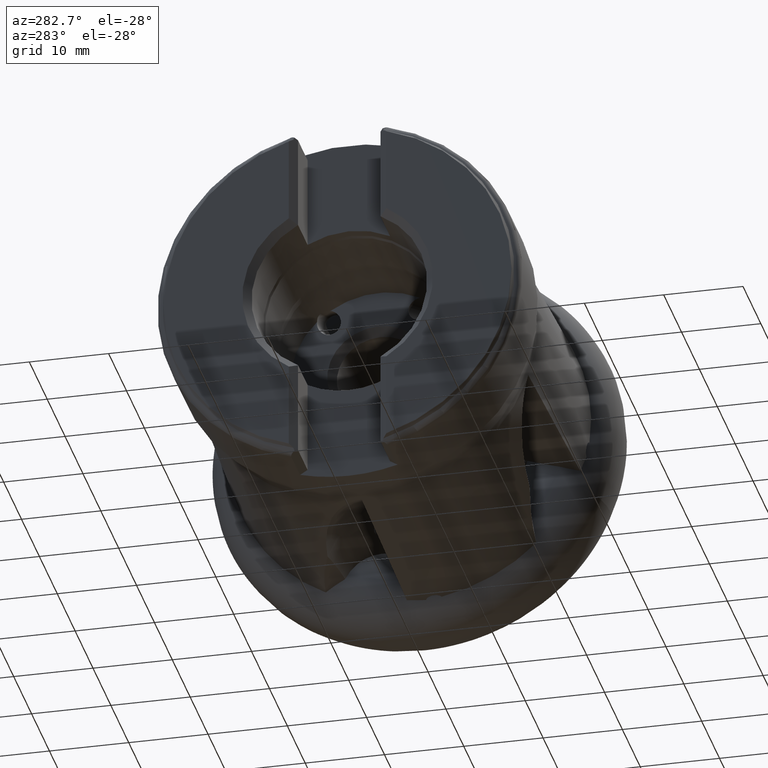
[diagram: clean part render]
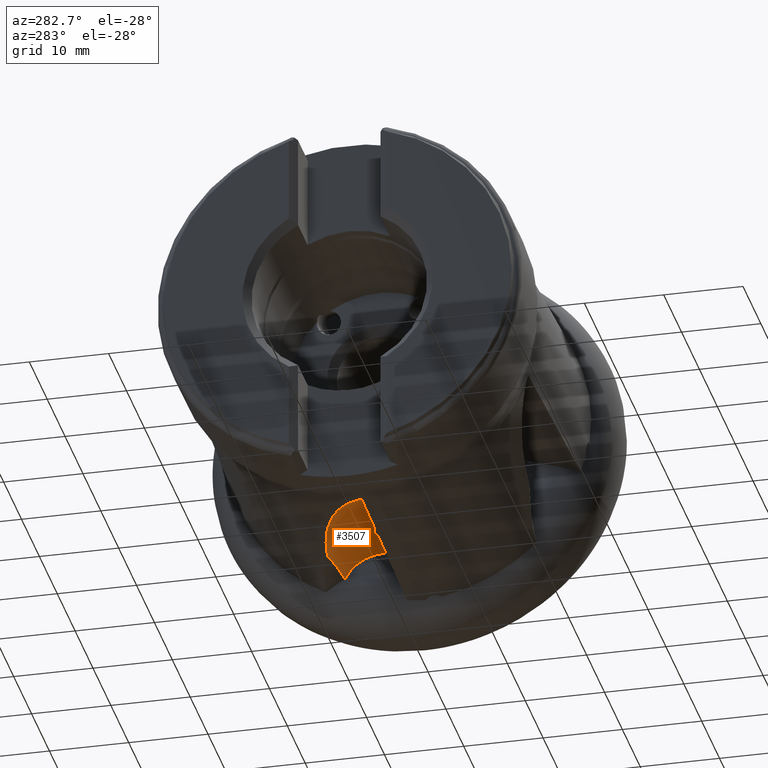
[diagram: same view with one face highlighted and labeled with its STEP entity id]
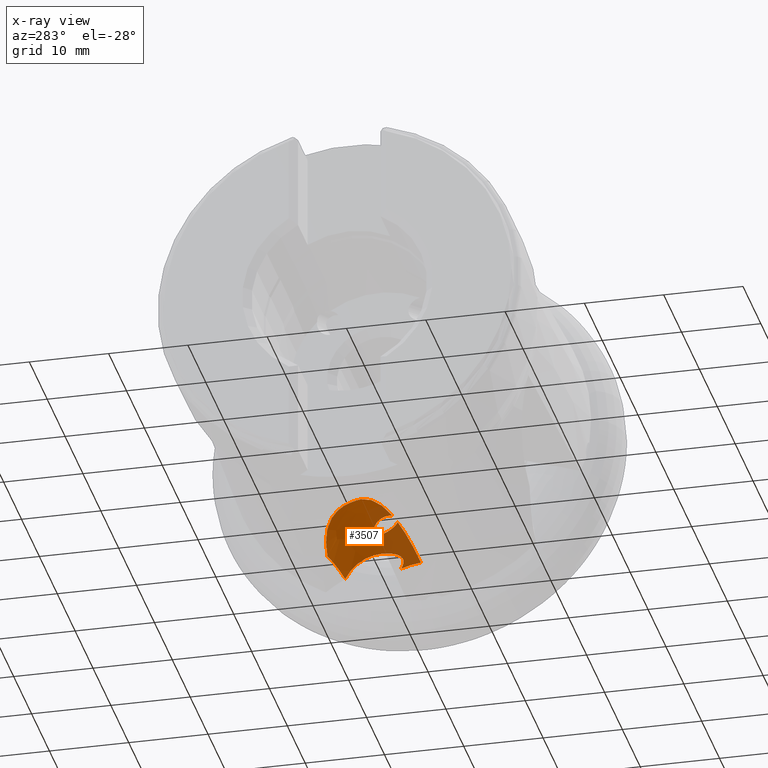
[diagram: x-ray of the same camera — body ghosted, the highlighted face saturated]
A machine part, auxiliary view. The second image highlights one B-rep face of the part: STEP entity #3507.
The next image is the same camera in x-ray: the body ghosted, the highlighted face saturated — about 28% of this face is hidden behind the body in this view.
In plain terms, the highlighted face is a freeform B-spline surface patch.
Its self-contained STEP definition (entity closure, byte-faithful):
#1 = CARTESIAN_POINT ( 'NONE',  ( -35.63093086630231500, 1.307486775860798000, -21.87548840057837300 ) ) ;
#14 = CARTESIAN_POINT ( 'NONE',  ( -35.45456745648346700, 1.626175425470714100, -21.85963263267169800 ) ) ;
#29 = DIRECTION ( 'NONE',  ( -0.0000000000000000000, 1.000000000000000000, 0.0000000000000000000 ) ) ;
#30 = CARTESIAN_POINT ( 'NONE',  ( -35.76786732149803100, 0.9628693406797984600, -21.88586330498318900 ) ) ;
#36 = CARTESIAN_POINT ( 'NONE',  ( -3.435761457491776300, 8.062502017746764300, -80.42099711031203000 ) ) ;
#71 = CARTESIAN_POINT ( 'NONE',  ( -35.85491274374862100, 0.7438088274120277000, -21.89245824665475500 ) ) ;
#75 = CARTESIAN_POINT ( 'NONE',  ( -33.47916840977887900, 3.751433315412817700, -21.66834882996262500 ) ) ;
#80 = CARTESIAN_POINT ( 'NONE',  ( -34.04904509011236500, 3.303037464580710100, -21.72380516141877400 ) ) ;
#97 = CARTESIAN_POINT ( 'NONE',  ( -34.81043872863444500, 2.509227754054341300, -21.79812973213602900 ) ) ;
#102 = CARTESIAN_POINT ( 'NONE',  ( -35.04521419876764600, 2.226372699425108100, -21.82104686198124800 ) ) ;
#115 = DIRECTION ( 'NONE',  ( 0.0000000000000000000, 0.0000000000000000000, 1.000000000000000000 ) ) ;
#119 = CARTESIAN_POINT ( 'NONE',  ( -31.29727425323967800, 5.065780682752242500, -21.47430065755688800 ) ) ;
#132 = CARTESIAN_POINT ( 'NONE',  ( -31.62019462946763000, 4.899640565483314200, -21.50141667133493300 ) ) ;
#138 = CARTESIAN_POINT ( 'NONE',  ( -32.25690373819281100, 4.543985940553751500, -21.55665705893365900 ) ) ;
#147 = CARTESIAN_POINT ( 'NONE',  ( -35.92735432220276000, 0.5201513456643062100, -21.89877281356943000 ) ) ;
#150 = CARTESIAN_POINT ( 'NONE',  ( -32.57035810515054000, 4.354538423447163400, -21.58476148876593100 ) ) ;
#152 = CARTESIAN_POINT ( 'NONE',  ( -27.60267428762362100, 6.531879340453211400, -21.21009628077235100 ) ) ;
#166 = CARTESIAN_POINT ( 'NONE',  ( -28.29208477712999000, 6.309898276332136300, -21.25260411388050100 ) ) ;
#171 = CARTESIAN_POINT ( 'NONE',  ( -29.64938854091344600, 5.811759724848734300, -21.34507537251369100 ) ) ;
#177 = CARTESIAN_POINT ( 'NONE',  ( -30.31737631780990900, 5.535849652769218900, -21.39505944166186800 ) ) ;
#181 = CARTESIAN_POINT ( 'NONE',  ( -21.93910815666820500, 7.854661759617883400, -20.96795770657939800 ) ) ;
#188 = CARTESIAN_POINT ( 'NONE',  ( -35.97935803597776100, 0.2899999999999994800, -21.90220497430753400 ) ) ;
#203 = CARTESIAN_POINT ( 'NONE',  ( -23.37206174434268000, 7.600187882350314600, -21.00987064965935900 ) ) ;
#207 = CARTESIAN_POINT ( 'NONE',  ( -25.50012427023651900, 7.113944046263533500, -21.09916819016096300 ) ) ;
#220 = CARTESIAN_POINT ( 'NONE',  ( -26.20702351045940000, 6.933906629270046200, -21.13338861634884600 ) ) ;
#251 = CARTESIAN_POINT ( 'NONE',  ( -20.49648691346574800, 8.062502017746764300, -20.94192254056266500 ) ) ;
#366 = CARTESIAN_POINT ( 'NONE',  ( -3.435761457491776300, 0.2899999999999994800, -80.42099711031203000 ) ) ;
#371 = DIRECTION ( 'NONE',  ( -0.0000000000000000000, 1.000000000000000000, 0.0000000000000000000 ) ) ;
#384 = DIRECTION ( 'NONE',  ( 0.0000000000000000000, 0.0000000000000000000, 1.000000000000000000 ) ) ;
#411 = ORIENTED_EDGE ( 'NONE', *, *, #2646, .T. ) ;
#417 = AXIS2_PLACEMENT_3D ( 'NONE', #366, #371, #384 ) ;
#461 = ORIENTED_EDGE ( 'NONE', *, *, #4627, .T. ) ;
#566 =( BOUNDED_SURFACE ( )  B_SPLINE_SURFACE ( 3, 3, ( 
 ( #4289, #4189, #4308, #4311 ),
 ( #4325, #4329, #4347, #4351 ),
 ( #4361, #4366, #4379, #4386 ),
 ( #4404, #4427, #4464, #4500 ) ),
 .UNSPECIFIED., .F., .F., .F. ) 
 B_SPLINE_SURFACE_WITH_KNOTS ( ( 4, 4 ),
 ( 4, 4 ),
 ( 0.0000000000000000000, 1.000000000000000000 ),
 ( 0.0000000000000000000, 1.000000000000000000 ),
 .UNSPECIFIED. ) 
 GEOMETRIC_REPRESENTATION_ITEM ( )  RATIONAL_B_SPLINE_SURFACE ( (
 ( 1.000000000000000000, 0.9771747372646481000, 0.9771747372646481000, 1.000000000000000000),
 ( 0.9237108360006764900, 0.9026268934774694900, 0.9026268934774694900, 0.9237108360006764900),
 ( 0.9237108360006764900, 0.9026268934774694900, 0.9026268934774694900, 0.9237108360006764900),
 ( 1.000000000000000000, 0.9771747372646481000, 0.9771747372646481000, 1.000000000000000000) ) ) 
 REPRESENTATION_ITEM ( '' )  SURFACE ( )  );
#569 = CARTESIAN_POINT ( 'NONE',  ( -14.85864327598008700, 0.6759077145883545200, -14.48360056682341800 ) ) ;
#573 = CARTESIAN_POINT ( 'NONE',  ( -15.27246199966753800, 0.4556647547009035600, -14.53108935833864700 ) ) ;
#641 = CARTESIAN_POINT ( 'NONE',  ( -35.97935803597776100, 0.2899999999999994800, -21.90220497430753400 ) ) ;
#660 = ORIENTED_EDGE ( 'NONE', *, *, #2022, .T. ) ;
#738 = CARTESIAN_POINT ( 'NONE',  ( -14.10574541889678500, 1.258566100368476700, -14.45924407139041700 ) ) ;
#795 = CARTESIAN_POINT ( 'NONE',  ( -14.30170265120454200, 3.355887162486437300, -15.16061456037259200 ) ) ;
#800 = CARTESIAN_POINT ( 'NONE',  ( -13.37292321132267300, 2.440202092729711700, -14.65786029043371000 ) ) ;
#802 = CARTESIAN_POINT ( 'NONE',  ( -2.692034791123084900, 0.2899999999999994800, -13.46592574177506100 ) ) ;
#814 = CARTESIAN_POINT ( 'NONE',  ( -13.85610212034660200, 3.240356176517210000, -15.03724582571226300 ) ) ;
#819 = CARTESIAN_POINT ( 'NONE',  ( -13.43528544466133400, 2.882212245532869600, -14.82555788135731900 ) ) ;
#832 = CARTESIAN_POINT ( 'NONE',  ( -13.63481252317400000, 1.795100156355482300, -14.50649850803618600 ) ) ;
#887 = CARTESIAN_POINT ( 'NONE',  ( -15.71470477606397700, 0.2899999999999994800, -14.59727598867201200 ) ) ;
#905 = CARTESIAN_POINT ( 'NONE',  ( -14.64843822682370700, 3.389534425512361600, -15.23403904955040400 ) ) ;
#913 = CARTESIAN_POINT ( 'NONE',  ( -13.56972744729799500, 3.060110633496519100, -14.91657828415100800 ) ) ;
#916 = CARTESIAN_POINT ( 'NONE',  ( -13.96482074167194500, 3.279952790597437500, -15.07192673699902000 ) ) ;
#920 = CARTESIAN_POINT ( 'NONE',  ( -13.36214362728565100, 2.555602883082865900, -14.69521200419940300 ) ) ;
#929 = CARTESIAN_POINT ( 'NONE',  ( -15.35114430668888400, 3.340626747757153000, -15.33689654245634900 ) ) ;
#934 = CARTESIAN_POINT ( 'NONE',  ( -18.55849438059774000, 0.2899999999999994800, -15.19188045021495300 ) ) ;
#937 = CARTESIAN_POINT ( 'NONE',  ( -13.39303664664854000, 2.777784630048055100, -14.77944311764302700 ) ) ;
#947 = CARTESIAN_POINT ( 'NONE',  ( -15.58264077701242200, 3.302623463386541200, -15.36275216207631200 ) ) ;
#959 = CARTESIAN_POINT ( 'NONE',  ( -13.47275469029862400, 2.107225043382335200, -14.56931698095421400 ) ) ;
#966 = CARTESIAN_POINT ( 'NONE',  ( -16.94207837571927300, 2.915556671387496700, -15.46756394493404900 ) ) ;
#973 = CARTESIAN_POINT ( 'NONE',  ( -14.88542918439549800, 3.383856438968840100, -15.27269528775284400 ) ) ;
#979 = CARTESIAN_POINT ( 'NONE',  ( -13.42820532218257400, 2.216770842448768900, -14.59517989992149500 ) ) ;
#989 = CARTESIAN_POINT ( 'NONE',  ( -14.18776078098242300, 3.337655260406258200, -15.13359969866387000 ) ) ;
#1005 = CARTESIAN_POINT ( 'NONE',  ( -16.04333051825023300, 3.201358860914621700, -15.40647527733376900 ) ) ;
#1014 = CARTESIAN_POINT ( 'NONE',  ( -13.65918966451775200, 3.131114131586720400, -14.95996031192062900 ) ) ;
#1017 = CARTESIAN_POINT ( 'NONE',  ( -14.28615549429007100, 1.101631282642189700, -14.45917402580202600 ) ) ;
#1031 = CARTESIAN_POINT ( 'NONE',  ( -16.27247299321135500, 3.137786829256951700, -15.42422840285052700 ) ) ;
#1045 = EDGE_CURVE ( 'NONE', #3643, #2839, #2850, .T. ) ;
#1102 = CARTESIAN_POINT ( 'NONE',  ( -18.55849438059774000, 0.2899999999999994800, -15.19188045021495300 ) ) ;
#1113 = CARTESIAN_POINT ( 'NONE',  ( -18.65638965557452500, 0.3543686747795237700, -15.22097172584568400 ) ) ;
#1137 = CARTESIAN_POINT ( 'NONE',  ( -18.43953404367481500, 1.984005661732811000, -15.48505087332216400 ) ) ;
#1156 = CARTESIAN_POINT ( 'NONE',  ( -18.17373436980199800, 2.218619723787711000, -15.49240289065609800 ) ) ;
#1162 = B_SPLINE_CURVE_WITH_KNOTS ( 'NONE', 3,
 ( #802, #4071, #3959, #3971 ),
 .UNSPECIFIED., .F., .F.,
 ( 4, 4 ),
 ( 2.764715539838036300E-018, 0.002537952650096972800 ),
 .UNSPECIFIED. ) ;
#1171 = CARTESIAN_POINT ( 'NONE',  ( -18.93773299903162100, 0.7257643013217600600, -15.33354122330999800 ) ) ;
#1178 = CARTESIAN_POINT ( 'NONE',  ( -18.75229772096199100, 1.625700201910344800, -15.46378971404906400 ) ) ;
#1182 = CARTESIAN_POINT ( 'NONE',  ( -2.692034791123097700, 2.766843804067989700, -14.02941662593323200 ) ) ;
#1224 = CARTESIAN_POINT ( 'NONE',  ( -18.87291383584780700, 1.419230921682844900, -15.44461752225938300 ) ) ;
#1235 = CARTESIAN_POINT ( 'NONE',  ( -35.76786732149803100, 0.9628693406797984600, -21.88586330498318900 ) ) ;
#1243 = DIRECTION ( 'NONE',  ( -0.0000000000000000000, 1.000000000000000000, 0.0000000000000000000 ) ) ;
#1262 = CARTESIAN_POINT ( 'NONE',  ( -3.435761457491776300, 0.2899999999999994800, -80.42099711031203000 ) ) ;
#1291 = ORIENTED_EDGE ( 'NONE', *, *, #1045, .T. ) ;
#1323 = CARTESIAN_POINT ( 'NONE',  ( -2.692034791123084900, 0.2899999999999994800, -13.46592574177506100 ) ) ;
#1465 = CARTESIAN_POINT ( 'NONE',  ( -10.67007373565094300, 7.795112440907656600, -18.48500831341299000 ) ) ;
#1529 = CARTESIAN_POINT ( 'NONE',  ( -5.265573836496638900, 2.118610366595002700, -13.83728538138554900 ) ) ;
#1623 = VERTEX_POINT ( 'NONE', #1182 ) ;
#1676 = CARTESIAN_POINT ( 'NONE',  ( -18.88642840795956700, 0.6169468248882611400, -15.30638132160016900 ) ) ;
#1684 = CARTESIAN_POINT ( 'NONE',  ( -17.37114031133222300, 2.726999595120494800, -15.48444443461405300 ) ) ;
#1708 = CARTESIAN_POINT ( 'NONE',  ( -18.52371044410782000, 1.901172484733425700, -15.48144189449811700 ) ) ;
#1738 = CARTESIAN_POINT ( 'NONE',  ( -13.78082408125784800, 1.605025130503128700, -14.48297065484423000 ) ) ;
#1773 = DIRECTION ( 'NONE',  ( 0.0000000000000000000, 0.0000000000000000000, 1.000000000000000000 ) ) ;
#1791 = CARTESIAN_POINT ( 'NONE',  ( -18.98302296235067700, 0.9564109405727439000, -15.38066032972436600 ) ) ;
#1801 = CARTESIAN_POINT ( 'NONE',  ( -18.97693933071062100, 1.078101029223752300, -15.40065304657126400 ) ) ;
#1810 = CARTESIAN_POINT ( 'NONE',  ( -18.92172504221690200, 1.307879745481288900, -15.43232548208299600 ) ) ;
#1859 = CARTESIAN_POINT ( 'NONE',  ( -35.76786732149803100, 0.9628693406797984600, -21.88586330498318900 ) ) ;
#1896 = EDGE_LOOP ( 'NONE', ( #411, #4322, #4027, #4580, #660, #2015, #461, #1291 ) ) ;
#1919 = CARTESIAN_POINT ( 'NONE',  ( -9.914423920048070800, 5.770557509199751000, -16.08780206923633900 ) ) ;
#2015 = ORIENTED_EDGE ( 'NONE', *, *, #3811, .F. ) ;
#2022 = EDGE_CURVE ( 'NONE', #3500, #2032, #5070, .T. ) ;
#2032 = VERTEX_POINT ( 'NONE', #934 ) ;
#2112 = EDGE_CURVE ( 'NONE', #3500, #2444, #2635, .T. ) ;
#2222 = VERTEX_POINT ( 'NONE', #4800 ) ;
#2297 = AXIS2_PLACEMENT_3D ( 'NONE', #1262, #1243, #1773 ) ;
#2305 = CARTESIAN_POINT ( 'NONE',  ( -10.32036140132433700, 6.486199265395021600, -16.79758282662739400 ) ) ;
#2312 = CARTESIAN_POINT ( 'NONE',  ( -10.23235801600083100, 6.309978945195889600, -16.61150782482760800 ) ) ;
#2329 = CARTESIAN_POINT ( 'NONE',  ( -10.02972045565163500, 5.952617401732523700, -16.25700561178409500 ) ) ;
#2339 = CARTESIAN_POINT ( 'NONE',  ( -10.65261904532731700, 7.495918921841597400, -18.03546012330741300 ) ) ;
#2347 = CARTESIAN_POINT ( 'NONE',  ( -10.52670583684767400, 7.004391692341148900, -17.39672350523897700 ) ) ;
#2371 = CARTESIAN_POINT ( 'NONE',  ( -10.46742946382367900, 6.832810773264085900, -17.18936964551795700 ) ) ;
#2377 = CARTESIAN_POINT ( 'NONE',  ( -10.61263477070059800, 8.062502017746764300, -18.96108209081273800 ) ) ;
#2411 = B_SPLINE_CURVE_WITH_KNOTS ( 'NONE', 3,
 ( #188, #147, #71, #30 ),
 .UNSPECIFIED., .F., .F.,
 ( 4, 4 ),
 ( 7.752045533271356700E-018, 0.0007055129496290838500 ),
 .UNSPECIFIED. ) ;
#2439 = CARTESIAN_POINT ( 'NONE',  ( -6.046239283161202800, 2.355497511955912100, -13.93502493227170400 ) ) ;
#2444 = VERTEX_POINT ( 'NONE', #1323 ) ;
#2448 = CARTESIAN_POINT ( 'NONE',  ( -6.291170920770184700, 2.468834004212436400, -13.98140236696979200 ) ) ;
#2458 = CARTESIAN_POINT ( 'NONE',  ( -6.762001693104971300, 2.725121149645151500, -14.09203096964484600 ) ) ;
#2467 = CARTESIAN_POINT ( 'NONE',  ( -6.984914691598867800, 2.866297700141160500, -14.15550082505971500 ) ) ;
#2475 = CARTESIAN_POINT ( 'NONE',  ( -7.627628369794288200, 3.313530606041661400, -14.36964826594247100 ) ) ;
#2482 = CARTESIAN_POINT ( 'NONE',  ( -8.023715732546245100, 3.644070679135900500, -14.54461358025197300 ) ) ;
#2495 = CARTESIAN_POINT ( 'NONE',  ( -8.756093624651601500, 4.333722096246134500, -14.96398019072949200 ) ) ;
#2525 = EDGE_CURVE ( 'NONE', #2222, #1623, #3961, .T. ) ;
#2635 = CIRCLE ( 'NONE', #2297, 66.95920184201830200 ) ;
#2646 = EDGE_CURVE ( 'NONE', #2839, #2222, #4503, .T. ) ;
#2747 = CARTESIAN_POINT ( 'NONE',  ( -9.661471552344316600, 5.406788721622620900, -15.76961983116421200 ) ) ;
#2759 = AXIS2_PLACEMENT_3D ( 'NONE', #36, #29, #115 ) ;
#2839 = VERTEX_POINT ( 'NONE', #4221 ) ;
#2850 = B_SPLINE_CURVE_WITH_KNOTS ( 'NONE', 3,
 ( #1235, #1, #14, #102, #97, #80, #75, #150, #138, #132, #119, #177, #171, #166, #152, #220, #207, #203, #181, #251 ),
 .UNSPECIFIED., .F., .F.,
 ( 4, 2, 2, 2, 2, 2, 2, 2, 2, 4 ),
 ( 0.0000000000000000000, 0.001091006530052891000, 0.002182013060105781900, 0.004364026120211563800, 0.005455032650264445900, 0.006546039180317327900, 0.008728052240423092900, 0.01091006530052885900, 0.01309207836063462500, 0.01745610448084615800 ),
 .UNSPECIFIED. ) ;
#2970 = CARTESIAN_POINT ( 'NONE',  ( -5.535427720760943700, 2.180225602919113800, -13.86301657284694900 ) ) ;
#3062 = CARTESIAN_POINT ( 'NONE',  ( -4.724806424825745300, 2.074892208798227300, -13.81202620687971100 ) ) ;
#3068 = CARTESIAN_POINT ( 'NONE',  ( -3.155686299814126600, 2.503147033714941300, -13.93233049071950300 ) ) ;
#3095 = FACE_OUTER_BOUND ( 'NONE', #1896, .T. ) ;
#3108 = CARTESIAN_POINT ( 'NONE',  ( -2.692034791123097700, 2.766843804067989700, -14.02941662593323200 ) ) ;
#3125 = CARTESIAN_POINT ( 'NONE',  ( -2.919761862566598000, 2.629443444353064300, -13.97656783501144400 ) ) ;
#3364 = CARTESIAN_POINT ( 'NONE',  ( -3.913100234299626800, 2.200070111439619500, -13.83777825003820900 ) ) ;
#3482 = CARTESIAN_POINT ( 'NONE',  ( -3.652868950327969900, 2.287825312703946500, -13.86272742000879200 ) ) ;
#3500 = VERTEX_POINT ( 'NONE', #4208 ) ;
#3507 = ADVANCED_FACE ( 'NONE', ( #3095 ), #566, .F. ) ;
#3521 = CARTESIAN_POINT ( 'NONE',  ( -18.67970183854956900, 1.722577280684879100, -15.47085067620771400 ) ) ;
#3566 = CARTESIAN_POINT ( 'NONE',  ( -17.97723554452271700, 2.357682754280347600, -15.49269566901247700 ) ) ;
#3643 = VERTEX_POINT ( 'NONE', #1859 ) ;
#3688 = CARTESIAN_POINT ( 'NONE',  ( -9.524611440163845100, 5.226014990836402400, -15.62132888965228600 ) ) ;
#3811 = EDGE_CURVE ( 'NONE', #4584, #2032, #3859, .T. ) ;
#3859 = CIRCLE ( 'NONE', #417, 66.95920184201830200 ) ;
#3959 = CARTESIAN_POINT ( 'NONE',  ( -2.692034791123076900, 1.969483606692706600, -13.73752921547818700 ) ) ;
#3961 = B_SPLINE_CURVE_WITH_KNOTS ( 'NONE', 3,
 ( #2377, #1465, #2339, #2347, #2371, #2305, #2312, #2329, #1919, #2747, #3688, #4576, #2495, #2482, #2475, #2467, #2458, #2448, #2439, #2970, #1529, #3062, #4201, #3364, #3482, #3068, #3125, #3108 ),
 .UNSPECIFIED., .F., .F.,
 ( 4, 2, 2, 2, 2, 2, 2, 2, 2, 2, 2, 2, 2, 4 ),
 ( 1.250926888277100300E-017, 0.001620414546305117600, 0.002430621819457670600, 0.003240829092610223900, 0.004051036365762776900, 0.004861243638915329800, 0.006481658185220442700, 0.008102072731525553800, 0.008912280004678110200, 0.009722487277830668300, 0.01053269455098322600, 0.01134290182413578300, 0.01215310909728833900, 0.01296331637044089600 ),
 .UNSPECIFIED. ) ;
#3971 = CARTESIAN_POINT ( 'NONE',  ( -2.692034791123097700, 2.766843804067989700, -14.02941662593323200 ) ) ;
#4027 = ORIENTED_EDGE ( 'NONE', *, *, #5059, .F. ) ;
#4071 = CARTESIAN_POINT ( 'NONE',  ( -2.692034791123089300, 1.144166830462959100, -13.54860207144456700 ) ) ;
#4107 = CARTESIAN_POINT ( 'NONE',  ( -18.74374499354932100, 0.4303053320140079500, -15.24958062330883400 ) ) ;
#4189 = CARTESIAN_POINT ( 'NONE',  ( -23.87236382868441000, 8.062502017746771400, -20.99779024440537300 ) ) ;
#4201 = CARTESIAN_POINT ( 'NONE',  ( -4.447136891588818300, 2.093031820712077700, -13.81231141220565000 ) ) ;
#4208 = CARTESIAN_POINT ( 'NONE',  ( -15.71470477606397700, 0.2899999999999994800, -14.59727598867201200 ) ) ;
#4221 = CARTESIAN_POINT ( 'NONE',  ( -20.49648691346574800, 8.062502017746764300, -20.94192254056266500 ) ) ;
#4289 = CARTESIAN_POINT ( 'NONE',  ( -33.44961434866217300, 8.062502017746769700, -26.31002503084273400 ) ) ;
#4308 = CARTESIAN_POINT ( 'NONE',  ( -13.24486891621793600, 8.062502017746771400, -18.35205446127268300 ) ) ;
#4311 = CARTESIAN_POINT ( 'NONE',  ( -2.294855702049743300, 8.062502017746769700, -18.55398652457965300 ) ) ;
#4322 = ORIENTED_EDGE ( 'NONE', *, *, #2525, .T. ) ;
#4325 = CARTESIAN_POINT ( 'NONE',  ( -35.01043176952924100, 6.431691379366450100, -23.83138451965638200 ) ) ;
#4329 = CARTESIAN_POINT ( 'NONE',  ( -24.99447981410630200, 6.431691379366450100, -18.24289634354352800 ) ) ;
#4347 = CARTESIAN_POINT ( 'NONE',  ( -13.87163545964389200, 6.431691379366450100, -15.44417750552179800 ) ) ;
#4351 = CARTESIAN_POINT ( 'NONE',  ( -2.403544240407111700, 6.431691379366450100, -15.62687248399188900 ) ) ;
#4361 = CARTESIAN_POINT ( 'NONE',  ( -35.98897988971379600, 3.626880712499168900, -22.27741095400557100 ) ) ;
#4366 = CARTESIAN_POINT ( 'NONE',  ( -25.69798585746763600, 3.626880712499168000, -16.51572684123319200 ) ) ;
#4379 = CARTESIAN_POINT ( 'NONE',  ( -14.26458418936996300, 3.626880712499168000, -13.62109590050147100 ) ) ;
#4386 = CARTESIAN_POINT ( 'NONE',  ( -2.471686076520221800, 3.626880712499168900, -13.79173026704265000 ) ) ;
#4404 = CARTESIAN_POINT ( 'NONE',  ( -36.16130085514988900, 0.2899999999999955400, -22.00375836649195400 ) ) ;
#4427 = CARTESIAN_POINT ( 'NONE',  ( -25.82187229501888800, 0.2899999999999955400, -16.21157468972353000 ) ) ;
#4464 = CARTESIAN_POINT ( 'NONE',  ( -14.33378191513996900, 0.2899999999999955400, -13.30005376086034200 ) ) ;
#4500 = CARTESIAN_POINT ( 'NONE',  ( -2.483685759257732600, 0.2899999999999955400, -13.46856427038470900 ) ) ;
#4503 = CIRCLE ( 'NONE', #2759, 61.87752956249888600 ) ;
#4576 = CARTESIAN_POINT ( 'NONE',  ( -9.085754951863057400, 4.687658771059697700, -15.20458842306994800 ) ) ;
#4580 = ORIENTED_EDGE ( 'NONE', *, *, #2112, .F. ) ;
#4584 = VERTEX_POINT ( 'NONE', #641 ) ;
#4627 = EDGE_CURVE ( 'NONE', #4584, #3643, #2411, .T. ) ;
#4800 = CARTESIAN_POINT ( 'NONE',  ( -10.61263477070059800, 8.062502017746764300, -18.96108209081273800 ) ) ;
#5059 = EDGE_CURVE ( 'NONE', #2444, #1623, #1162, .T. ) ;
#5070 = B_SPLINE_CURVE_WITH_KNOTS ( 'NONE', 3,
 ( #887, #573, #569, #1017, #738, #1738, #832, #959, #979, #800, #920, #937, #819, #913, #1014, #814, #916, #989, #795, #905, #973, #929, #947, #1005, #1031, #966, #1684, #3566, #1156, #1137, #1708, #3521, #1178, #1224, #1810, #1801, #1791, #1171, #1676, #4107, #1113, #1102 ),
 .UNSPECIFIED., .F., .F.,
 ( 4, 2, 2, 2, 2, 2, 2, 2, 2, 2, 2, 2, 2, 2, 2, 2, 2, 2, 2, 2, 4 ),
 ( 5.017754684356812000E-016, 0.001413186772562395900, 0.002119780158843345100, 0.002826373545124293900, 0.003179670238264768500, 0.003532966931405243500, 0.003886263624545718100, 0.004239560317686193200, 0.004592857010826668200, 0.004946153703967143300, 0.005652747090248094200, 0.006359340476529044300, 0.007065933862809996100, 0.008479120635371905800, 0.009185714021652859400, 0.009539010714793337900, 0.009892307407933814700, 0.01024560410107429100, 0.01059890079421476800, 0.01095219748735524700, 0.01130549418049572500 ),
 .UNSPECIFIED. ) ;